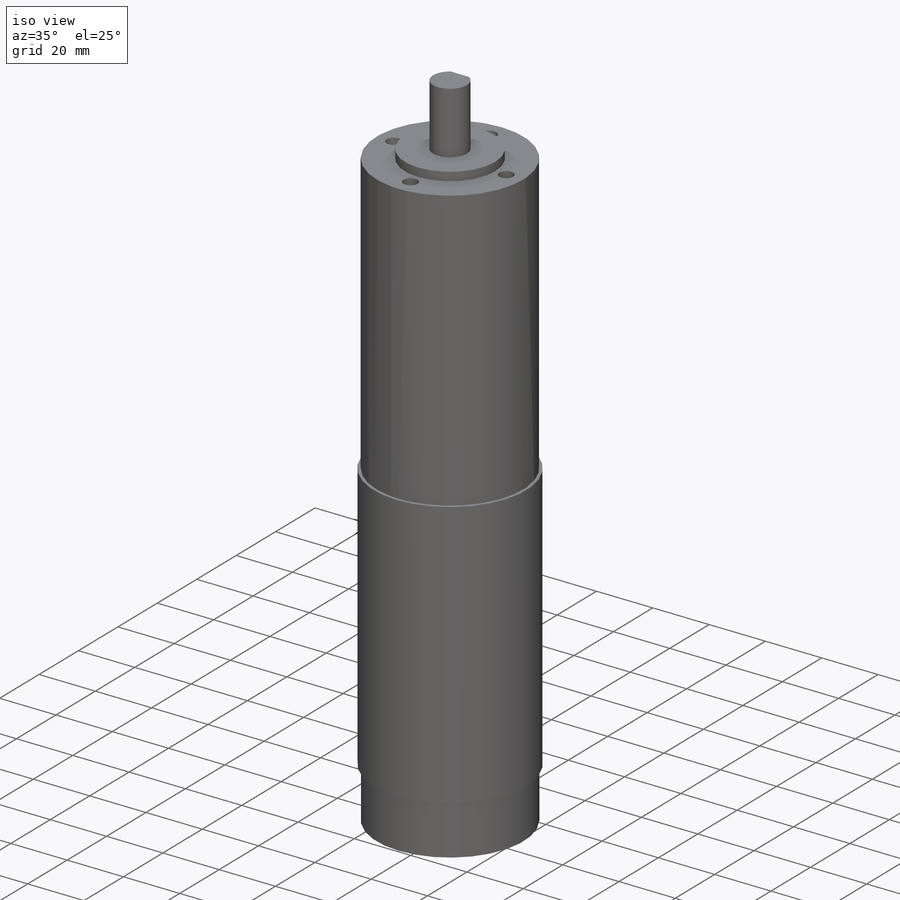
[diagram: iso view]
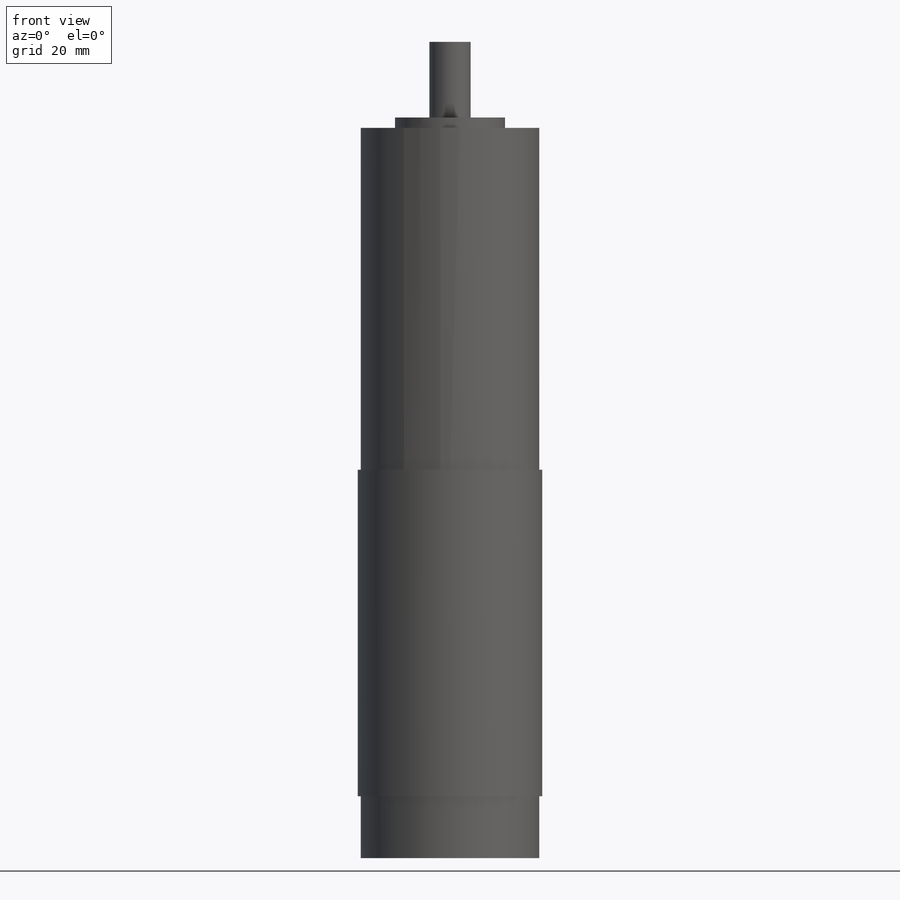
[diagram: front view]
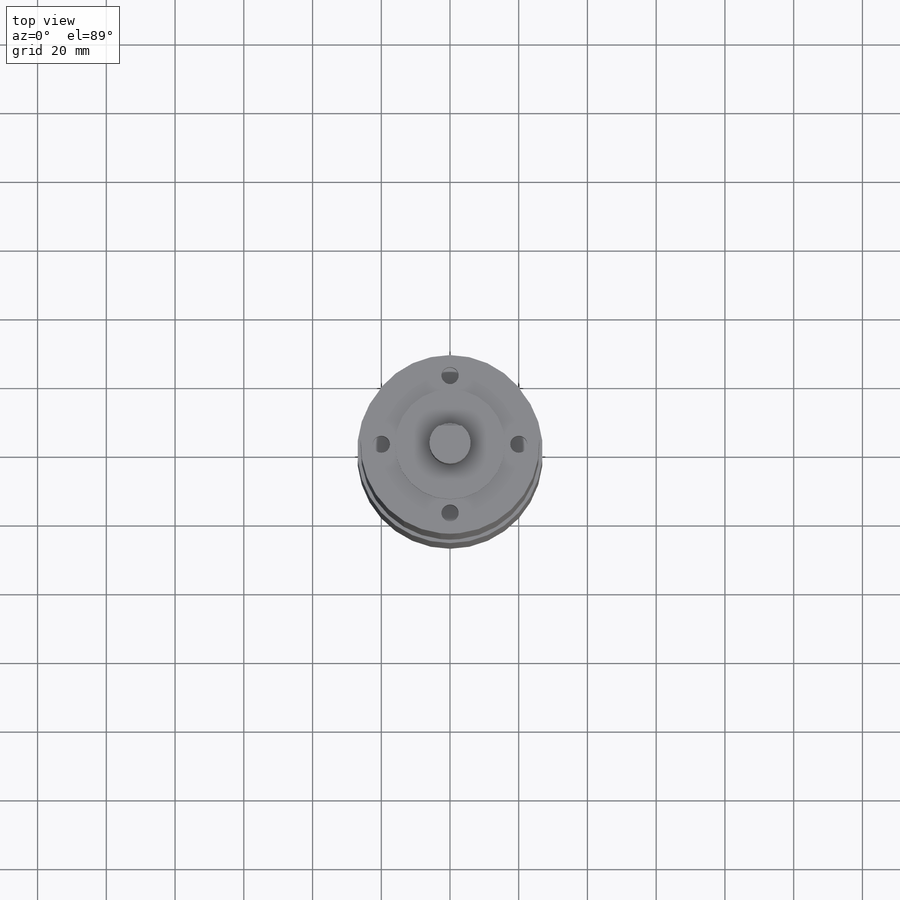
[diagram: top view]
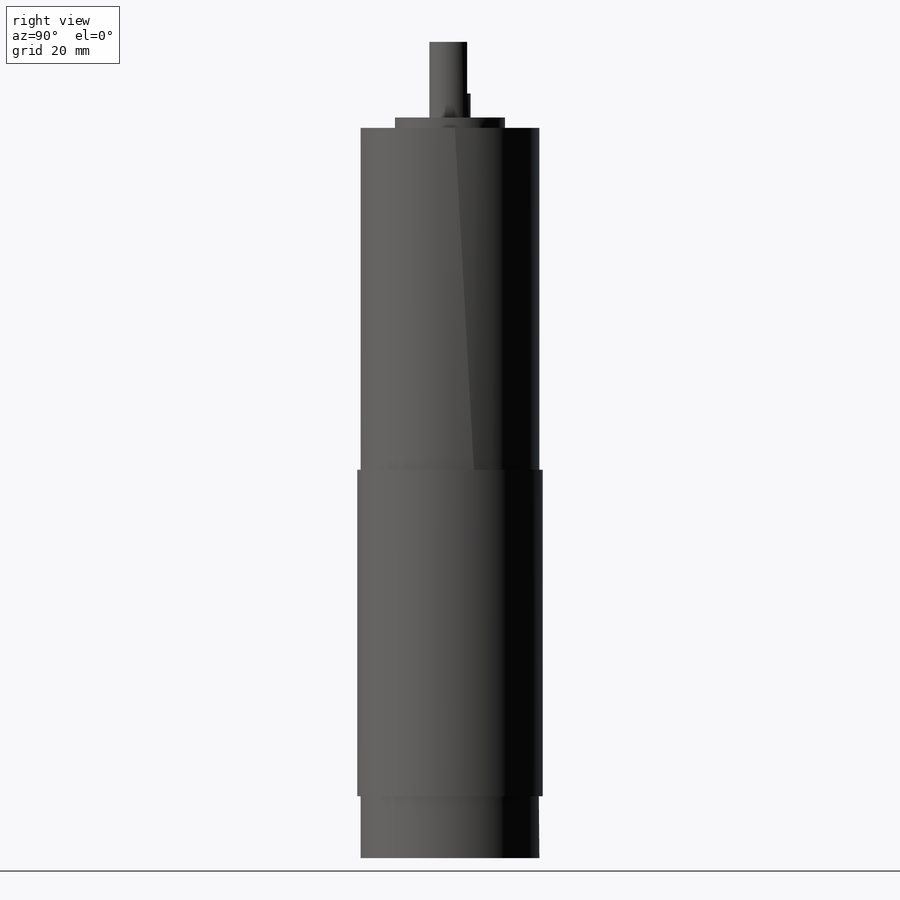
[diagram: right view]
SOLIDWORKS PART (.sldprt)
format: sldprt  version: not decoded by parser v0  size: 176,128 bytes
history: native  units: mm
features: sketch x7, extrude x5, cut_extrude x2, material x1 (+16 scaffold rows collapsed)
feature tree (31):
  scaffold x16  (default folders/planes/origin — collapsed)
  material  "Material <not specified>"
  sketch  "Sketch1"  dims[D1=54.0mm]
  extrude  "Boss-Extrude1"  Depth=95mm
  sketch  "Sketch2"  dims[D1=52.0mm]
  extrude  "Boss-Extrude2"  Depth=99.5mm
  sketch  "Sketch3"  dims[D1=32.0mm]
  extrude  "Boss-Extrude3"  Depth=3mm
  sketch  "Sketch4"  dims[D1=12.0mm]
  extrude  "Boss-Extrude4"  Depth=22mm
  sketch  "Sketch5"  dims[D1=4.0mm]
  cut_extrude  "Cut-Extrude1"  Depth=15mm
  sketch  "Sketch6"  dims[c1.D1=40.0mm c1.D2=5.0mm c1.D3=5.0mm c1.D4=5.0mm c1.D5=5.0mm c1.ModelUUID=0.0mm c1.UUID=0.0mm c2.ModelUUID=0.0mm]
  cut_extrude  "Cut-Extrude2"  Depth=10mm
  sketch  "Sketch7"  dims[D1=52.0mm]
  extrude  "Boss-Extrude5"  Depth=18mm
decode coverage: 14 of 14 modeling features carry decoded parameters
note: suppression state not decoded; provenance and decode notes live in map.json
